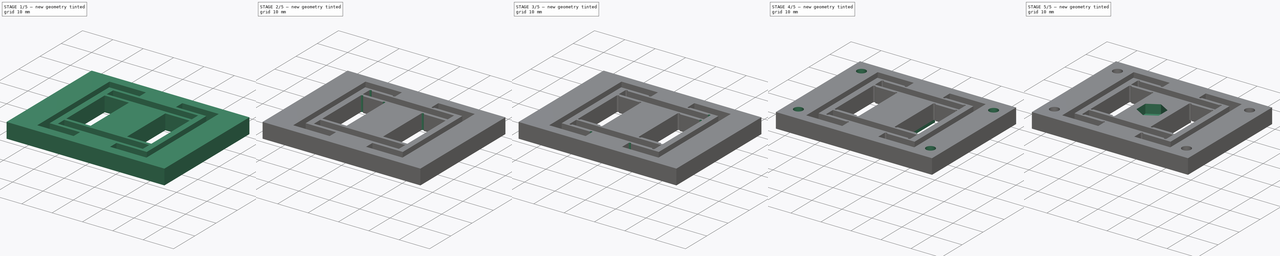
[diagram: build sequence overview — one tinted view per stage of 5, left to right]
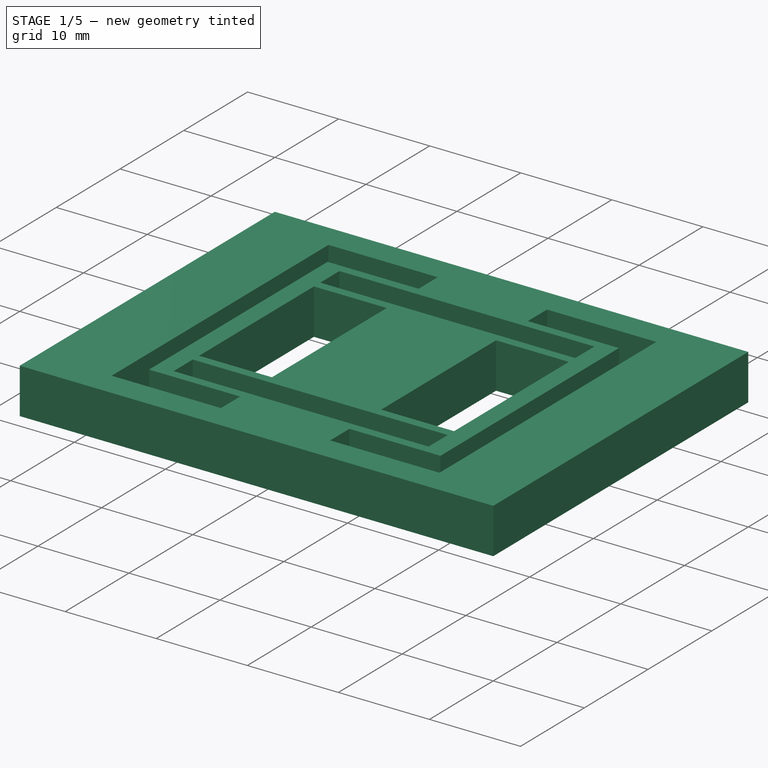
[diagram: stage 1 of 5 — iso view after this stage's code; geometry added in this stage tinted green]
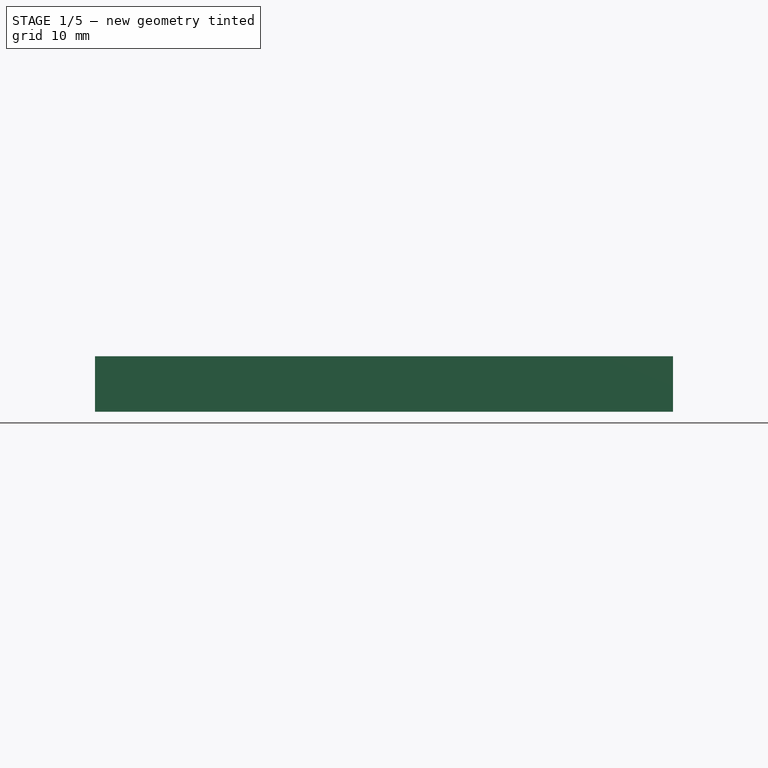
[diagram: stage 1 of 5 — front view after this stage's code; geometry added in this stage tinted green]
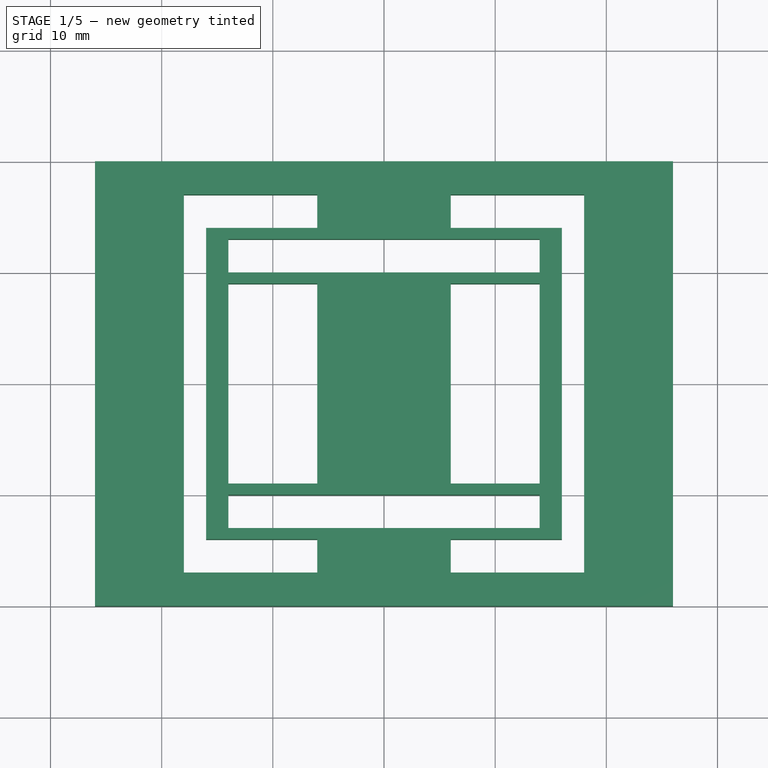
[diagram: stage 1 of 5 — top view after this stage's code; geometry added in this stage tinted green]
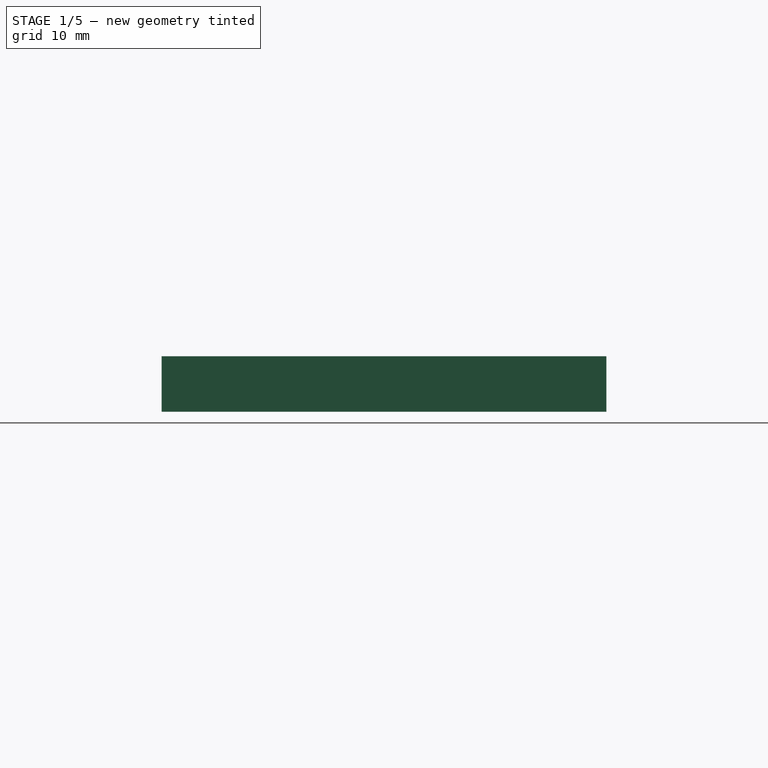
[diagram: stage 1 of 5 — right view after this stage's code; geometry added in this stage tinted green]
FCSTD DOCUMENT  (FreeCAD 0.18R16131 (Git))
Label: pen_holder_flexure
License: All rights reserved
LicenseURL: http://en.wikipedia.org/wiki/All_rights_reserved
objects: Sketcher::SketchObject×11, PartDesign::Pocket×8, PartDesign::Mirrored×5, PartDesign::Pad×3, PartDesign::Plane×1, PartDesign::Body×1
note: 40 computed .brp shape members not serialized (recipe doc carries the construction recipe); baked Part::Feature solids carry a one-line shape summary decoded from their .brp

FEATURE [Sketcher::SketchObject] Sketch
  MapMode = 5
  Support = -> [XY_Plane]
  sketch-geometry (4):
    g0: LineSegment StartX=-26 StartY=0 StartZ=0 EndX=26 EndY=0 EndZ=0
    g1: LineSegment StartX=26 StartY=0 StartZ=0 EndX=26 EndY=40 EndZ=0
    g2: LineSegment StartX=26 StartY=40 StartZ=0 EndX=-26 EndY=40 EndZ=0
    g3: LineSegment StartX=-26 StartY=40 StartZ=0 EndX=-26 EndY=0 EndZ=0
  constraints (11):
    c: Coincident(g0,g1)
    c: Coincident(g1,g2)
    c: Coincident(g2,g3)
    c: Coincident(g3,g0)
    c: Horizontal(g2)
    c: Vertical(g1)
    c: Vertical(g3)
    c: Symmetric(g0,g0,g-2)
    c: DistanceX(g2,g1) = 52
    c: DistanceY(g0,g1) = 40
    c: Horizontal(g0,g-1)
FEATURE [PartDesign::Pad] Pad
  Length = 5
  Length2 = 100
  Profile = -> Sketch
  Type = 0
FEATURE [Sketcher::SketchObject] Sketch001  label="flexure_cut_sketch"
  ExternalGeometry = -> [Pad]
  MapMode = 5
  Placement = pos=(0,0,5) rot=(0,0,1;0rad)
  Support = -> [Pad]
  sketch-geometry (21):
    g0: LineSegment StartX=-18 StartY=37 StartZ=0 EndX=-18 EndY=3 EndZ=0
    g1: LineSegment StartX=-18 StartY=3 StartZ=0 EndX=-6 EndY=3 EndZ=0
    g2: LineSegment StartX=-6 StartY=3 StartZ=0 EndX=-6 EndY=6 EndZ=0
    g3: LineSegment StartX=-6 StartY=6 StartZ=0 EndX=-16 EndY=6 EndZ=0
    g4: LineSegment StartX=-16 StartY=6 StartZ=0 EndX=-16 EndY=34 EndZ=0
    g5: LineSegment StartX=-16 StartY=34 StartZ=0 EndX=-6 EndY=34 EndZ=0
    g6: LineSegment StartX=-6 StartY=34 StartZ=0 EndX=-6 EndY=37 EndZ=0
    g7: LineSegment StartX=-6 StartY=37 StartZ=0 EndX=-18 EndY=37 EndZ=0
    g8: LineSegment StartX=0 StartY=33 StartZ=0 EndX=-14 EndY=33 EndZ=0
    g9: LineSegment StartX=-14 StartY=33 StartZ=0 EndX=-14 EndY=30 EndZ=0
    g10: LineSegment StartX=-14 StartY=30 StartZ=0 EndX=0 EndY=30 EndZ=0
    g11: LineSegment StartX=0 StartY=30 StartZ=0 EndX=0 EndY=33 EndZ=0
    g12: LineSegment StartX=0 StartY=10 StartZ=0 EndX=-14 EndY=10 EndZ=0
    g13: LineSegment StartX=-14 StartY=10 StartZ=0 EndX=-14 EndY=7 EndZ=0
    g14: LineSegment StartX=-14 StartY=7 StartZ=0 EndX=0 EndY=7 EndZ=0
    g15: LineSegment StartX=0 StartY=7 StartZ=0 EndX=0 EndY=10 EndZ=0
    g16: LineSegment [constr] StartX=-20.7694 StartY=20 StartZ=0 EndX=13.0053 EndY=20 EndZ=0
    g17: LineSegment StartX=-14 StartY=29 StartZ=0 EndX=-6 EndY=29 EndZ=0
    g18: LineSegment StartX=-6 StartY=29 StartZ=0 EndX=-6 EndY=11 EndZ=0
    g19: LineSegment StartX=-6 StartY=11 StartZ=0 EndX=-14 EndY=11 EndZ=0
    g20: LineSegment StartX=-14 StartY=11 StartZ=0 EndX=-14 EndY=29 EndZ=0
  constraints (59):
    c: Coincident(g0,g1)
    c: Coincident(g1,g2)
    c: Coincident(g2,g3)
    c: Coincident(g3,g4)
    c: Coincident(g4,g5)
    c: Coincident(g5,g6)
    c: Coincident(g6,g7)
    c: Coincident(g0,g7)
    c: Horizontal(g7)
    c: Horizontal(g5)
    c: Horizontal(g3)
    c: Horizontal(g1)
    c: Vertical(g6)
    c: Vertical(g0)
    c: Vertical(g4)
    c: Vertical(g2)
    c: Equal(g2,g6)
    c: Equal(g1,g7)
    c: Coincident(g8,g9)
    c: Coincident(g9,g10)
    c: Coincident(g10,g11)
    c: Coincident(g11,g8)
    c: Horizontal(g8)
    c: Horizontal(g10)
    c: Vertical(g11)
    c: Vertical(g9)
    c: PointOnObject(g10,g-2)
    c: Coincident(g12,g13)
    c: Coincident(g13,g14)
    c: Coincident(g14,g15)
    c: Coincident(g15,g12)
    c: Horizontal(g12)
    c: Horizontal(g14)
    c: Vertical(g13)
    c: Vertical(g15)
    c: DistanceY(g-1,g16) = 20
    c: Equal(g15,g11)
    c: Equal(g12,g10)
    c: Symmetric(g12,g10,g16)
    c: Symmetric(g5,g2,g16)
    c: DistanceY(g8,g5) = 1
    c: DistanceX(g4,g8) = 2
    c: DistanceX(g0,g4) = 2
    c: DistanceY(g5,g6) = 3
    c: DistanceY(g6,g-3) = 3
    c: Coincident(g17,g18)
    c: Coincident(g18,g19)
    c: Coincident(g19,g20)
    c: Coincident(g20,g17)
    c: Horizontal(g17)
    c: Horizontal(g19)
    c: Vertical(g20)
    c: Symmetric(g18,g17,g16)
    c: Vertical(g17,g9)
    c: Vertical(g17,g5)
    c: DistanceX(g17,g-1) = 6
    c: DistanceY(g17,g10) = 1
    c: DistanceY(g10,g8) = 3
    c: DistanceX(g-3,g0) = 8
FEATURE [PartDesign::Pocket] Pocket  label="flexure_cut"
  BaseFeature = -> Pad
  Length = 5
  Length2 = 100
  Profile = -> Sketch001
  Type = 0
FEATURE [PartDesign::Mirrored] Mirrored  label="flexure_mirror"
  BaseFeature = -> Pocket
  MirrorPlane = -> Sketch001 [V_Axis]
  Originals = -> [Pocket]
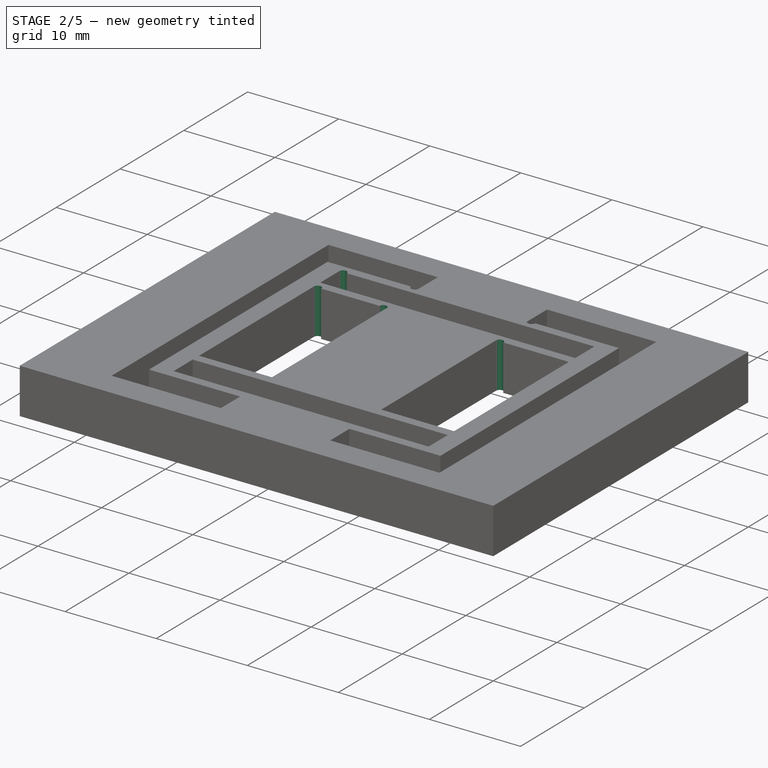
[diagram: stage 2 of 5 — iso view after this stage's code; geometry added in this stage tinted green]
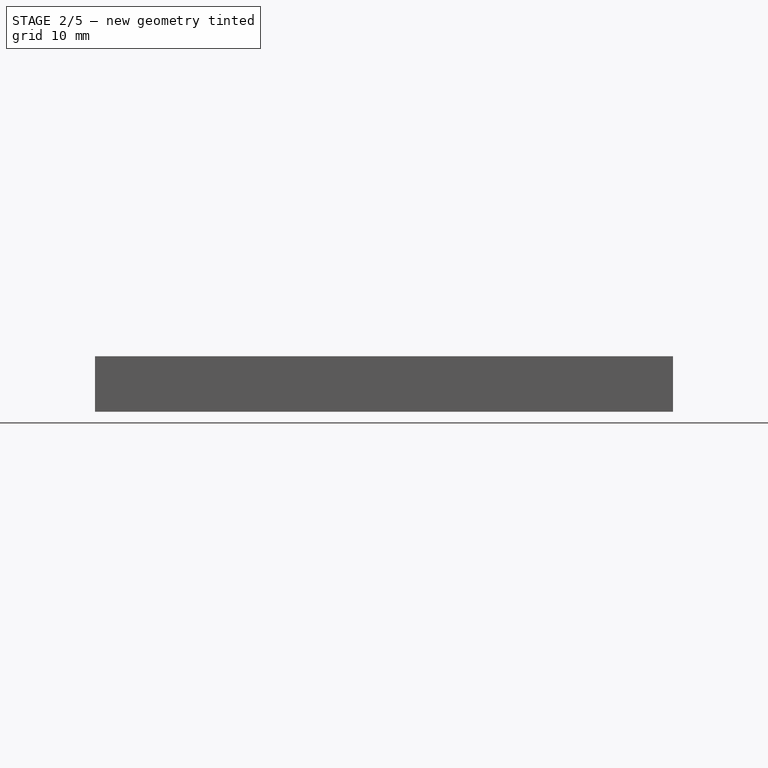
[diagram: stage 2 of 5 — front view after this stage's code; geometry added in this stage tinted green]
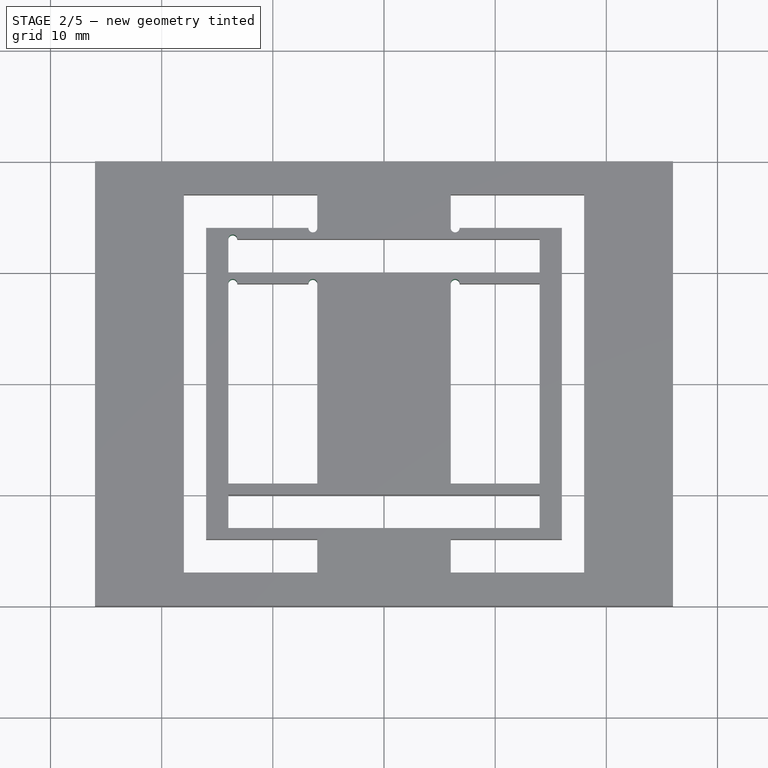
[diagram: stage 2 of 5 — top view after this stage's code; geometry added in this stage tinted green]
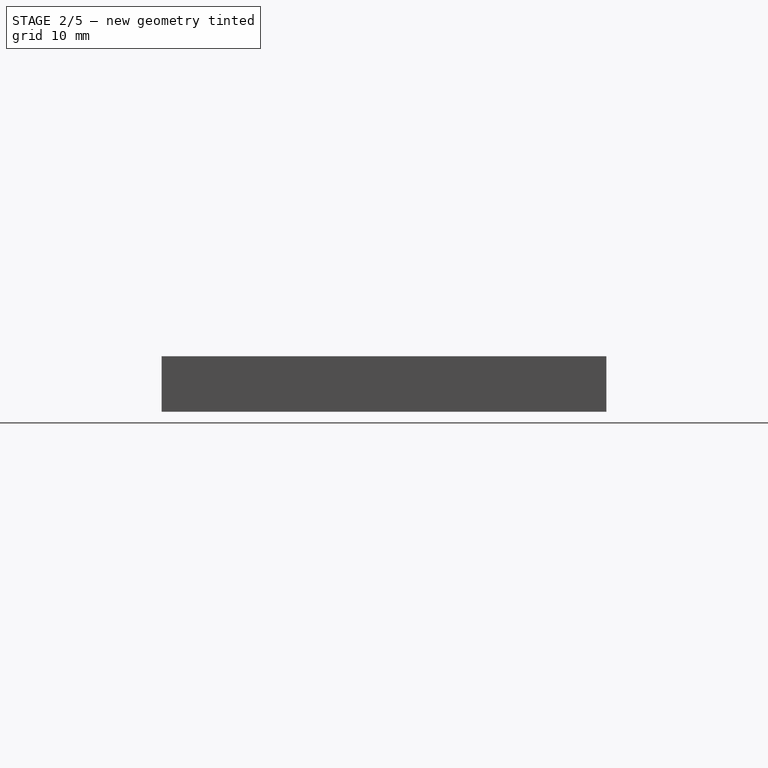
[diagram: stage 2 of 5 — right view after this stage's code; geometry added in this stage tinted green]
FEATURE [Sketcher::SketchObject] Sketch002  label="inner_hinge_cut_sketch"
  ExternalGeometry = -> [Mirrored]
  MapMode = 5
  Placement = pos=(0,0,5) rot=(0,0,1;0rad)
  Support = -> [Mirrored]
  sketch-geometry (2):
    g0: Circle CenterX=-6.4 CenterY=34 CenterZ=0 NormalX=0 NormalY=0 NormalZ=1 AngleXU=0 Radius=0.4
    g1: Circle CenterX=-6.4 CenterY=29 CenterZ=0 NormalX=0 NormalY=0 NormalZ=1 AngleXU=0 Radius=0.4
  constraints (6):
    c: Tangent(g0,g-3)
    c: Radius(g0) = 0.4
    c: Horizontal(g0,g-3)
    c: Horizontal(g1,g-4)
    c: Equal(g1,g0)
    c: PointOnObject(g-4,g1)
FEATURE [PartDesign::Pocket] Pocket001  label="inner_hinge_cut"
  BaseFeature = -> Mirrored
  Length = 5
  Length2 = 100
  Profile = -> Sketch002
  Type = 1
FEATURE [PartDesign::Mirrored] Mirrored001  label="inner_hinge_mirror_x"
  BaseFeature = -> Pocket001
  MirrorPlane = -> Sketch002 [V_Axis]
  Originals = -> [Pocket001]
FEATURE [PartDesign::Plane] DatumPlane  label="xz_middle"
  AttachmentOffset = pos=(0,0,-20) rot=(0,0,1;0rad)
  Length = 58.4498
  MapMode = 5
  Placement = pos=(0,20,-4.4e-15) rot=(1,0,0;1.5708rad)
  ResizeMode = 0
  Support = -> [XZ_Plane]
  Width = 26.4498
FEATURE [Sketcher::SketchObject] Sketch003  label="outer_hinge_cut"
  MapMode = 5
  Placement = pos=(0,0,5) rot=(0,0,1;0rad)
  sketch-geometry (2):
    g0: Circle CenterX=-13.6 CenterY=33 CenterZ=0 NormalX=0 NormalY=0 NormalZ=1 AngleXU=0 Radius=0.4
    g1: Circle CenterX=-13.6 CenterY=29 CenterZ=0 NormalX=0 NormalY=0 NormalZ=1 AngleXU=0 Radius=0.4
  constraints (6):
    c: Equal(g1,g0)
    c: Radius(g0) = 0.4
    c: DistanceX(g1,g-1) = 13.6
    c: Vertical(g1,g0)
    c: DistanceY(g-1,g1) = 29
    c: DistanceY(g1,g0) = 4
FEATURE [PartDesign::Pocket] Pocket002  label="outer_hinge_cut001"
  BaseFeature = -> Mirrored001
  Length = 5
  Length2 = 100
  Profile = -> Sketch003
  Type = 1
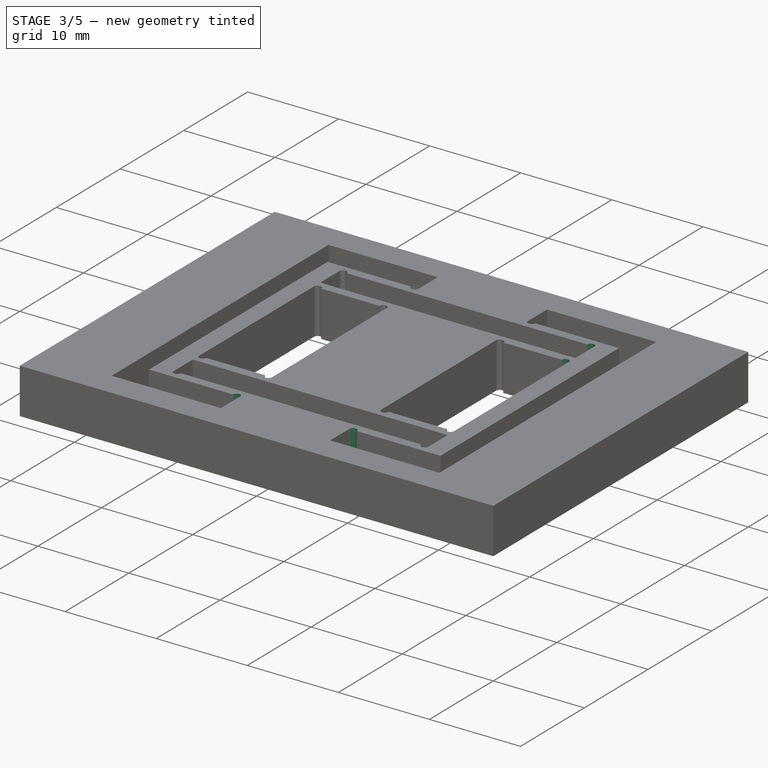
[diagram: stage 3 of 5 — iso view after this stage's code; geometry added in this stage tinted green]
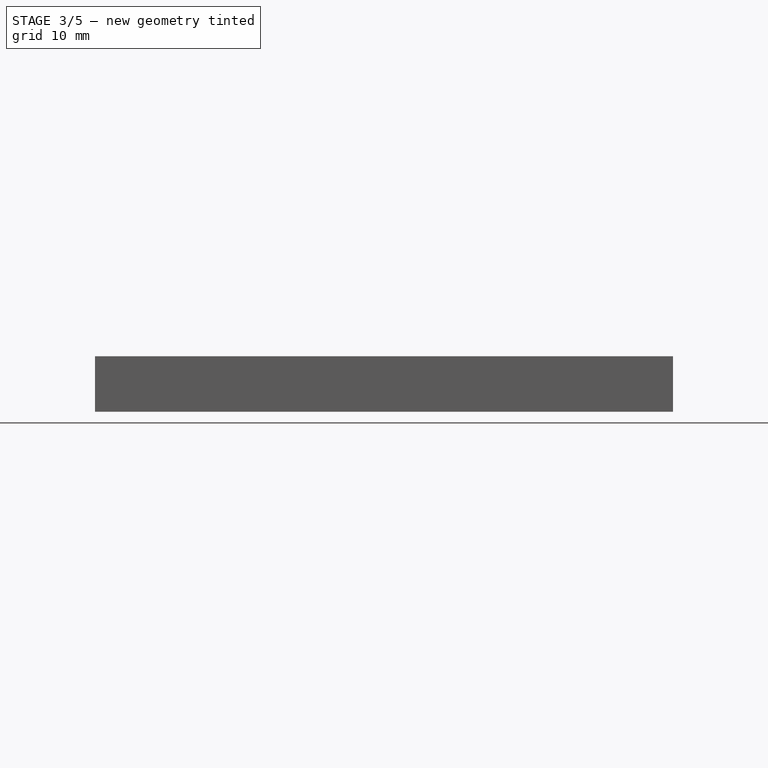
[diagram: stage 3 of 5 — front view after this stage's code; geometry added in this stage tinted green]
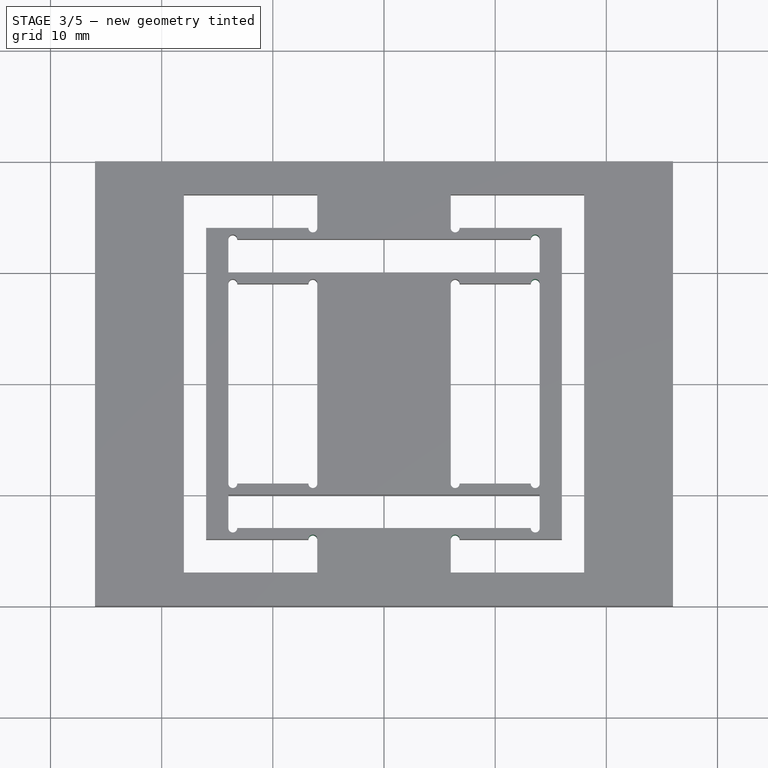
[diagram: stage 3 of 5 — top view after this stage's code; geometry added in this stage tinted green]
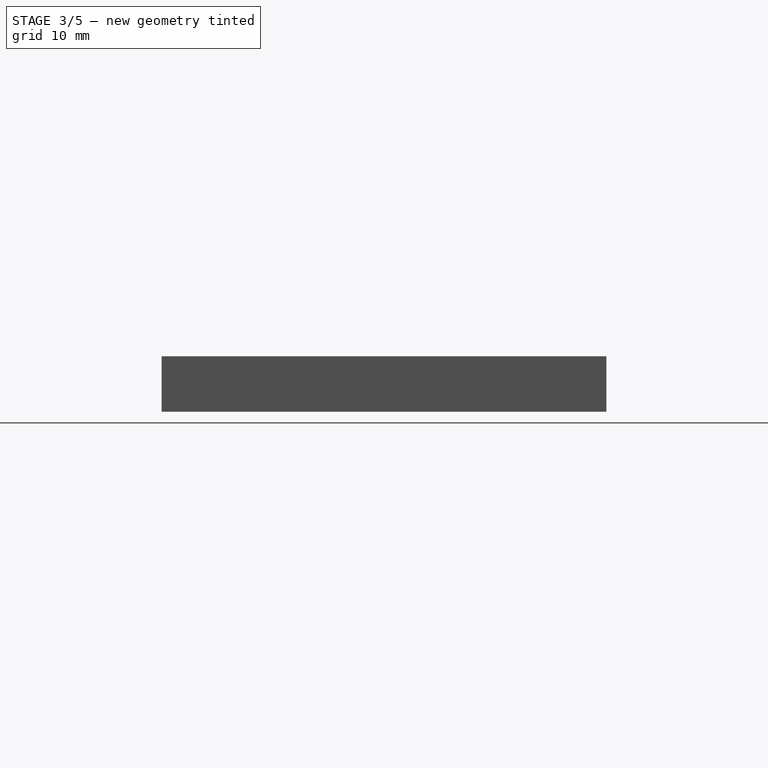
[diagram: stage 3 of 5 — right view after this stage's code; geometry added in this stage tinted green]
FEATURE [PartDesign::Mirrored] Mirrored002  label="outer_hinge_mirror_x"
  BaseFeature = -> Pocket002
  MirrorPlane = -> Sketch003 [V_Axis]
  Originals = -> [Pocket002]
FEATURE [PartDesign::Mirrored] Mirrored003  label="inner_hinge_mirror_y"
  BaseFeature = -> Mirrored002
  MirrorPlane = -> DatumPlane
  Originals = -> [Pocket001]
FEATURE [PartDesign::Mirrored] Mirrored004  label="outer_hinge_mirror_y"
  BaseFeature = -> Mirrored003
  MirrorPlane = -> DatumPlane
  Originals = -> [Pocket002]
FEATURE [Sketcher::SketchObject] Sketch004  label="hinge_cut_002"
  ExternalGeometry = -> [Mirrored004]
  MapMode = 5
  Placement = pos=(0,0,5) rot=(0,0,1;0rad)
  Support = -> [Mirrored004]
  sketch-geometry (4):
    g0: Circle CenterX=6.4 CenterY=6 CenterZ=0 NormalX=0 NormalY=0 NormalZ=1 AngleXU=0 Radius=0.4
    g1: Circle CenterX=13.6 CenterY=11 CenterZ=0 NormalX=0 NormalY=0 NormalZ=1 AngleXU=0 Radius=0.4
    g2: Circle CenterX=6.4 CenterY=11 CenterZ=0 NormalX=0 NormalY=0 NormalZ=1 AngleXU=0 Radius=0.4
    g3: Circle CenterX=13.6 CenterY=7 CenterZ=0 NormalX=0 NormalY=0 NormalZ=1 AngleXU=0 Radius=0.4
  constraints (11):
    c: Radius(g0) = 0.4
    c: Vertical(g3,g1)
    c: Equal(g2,g0)
    c: Equal(g0,g3)
    c: Equal(g3,g1)
    c: DistanceX(g-1,g0) = 6.4
    c: Vertical(g0,g2)
    c: DistanceY(g-1,g0) = 6
    c: DistanceX(g-1,g3) = 13.6
    c: DistanceY(g3,g1) = 4
    c: DistanceY(g-1,g3) = 7
FEATURE [PartDesign::Pocket] Pocket003  label="hinge_cut_003"
  BaseFeature = -> Mirrored004
  Length = 5
  Length2 = 100
  Profile = -> Sketch004
  Type = 1
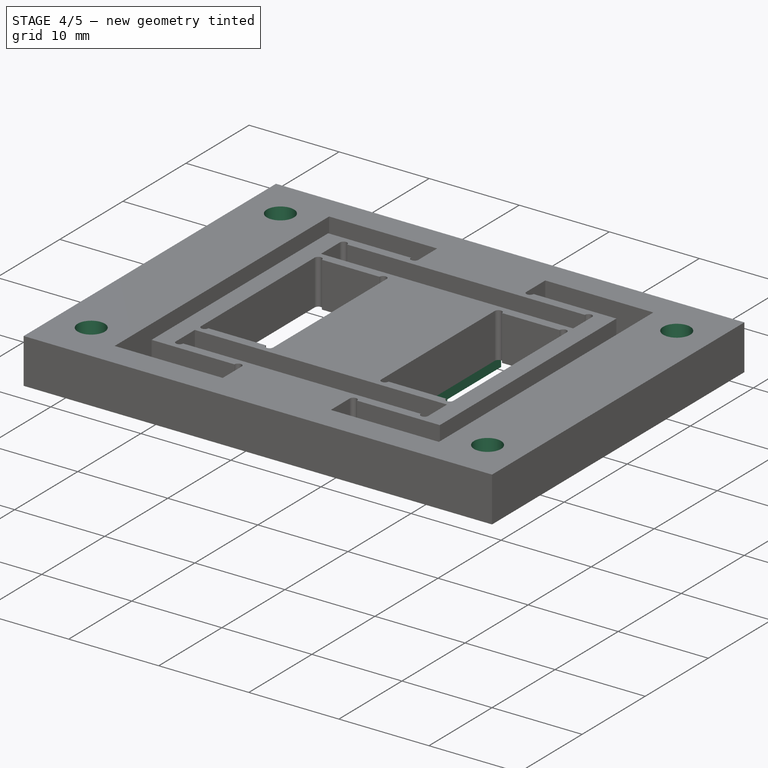
[diagram: stage 4 of 5 — iso view after this stage's code; geometry added in this stage tinted green]
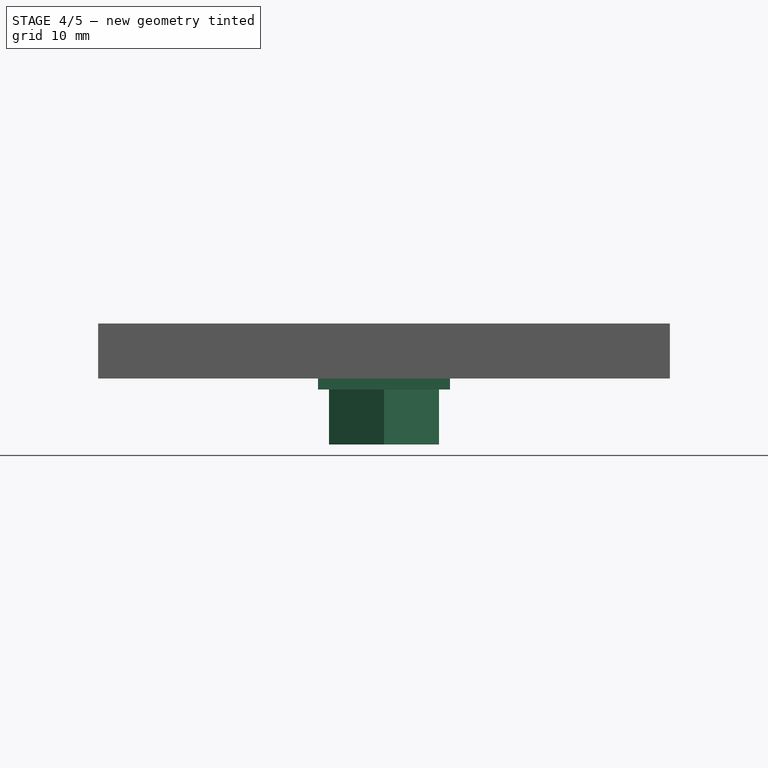
[diagram: stage 4 of 5 — front view after this stage's code; geometry added in this stage tinted green]
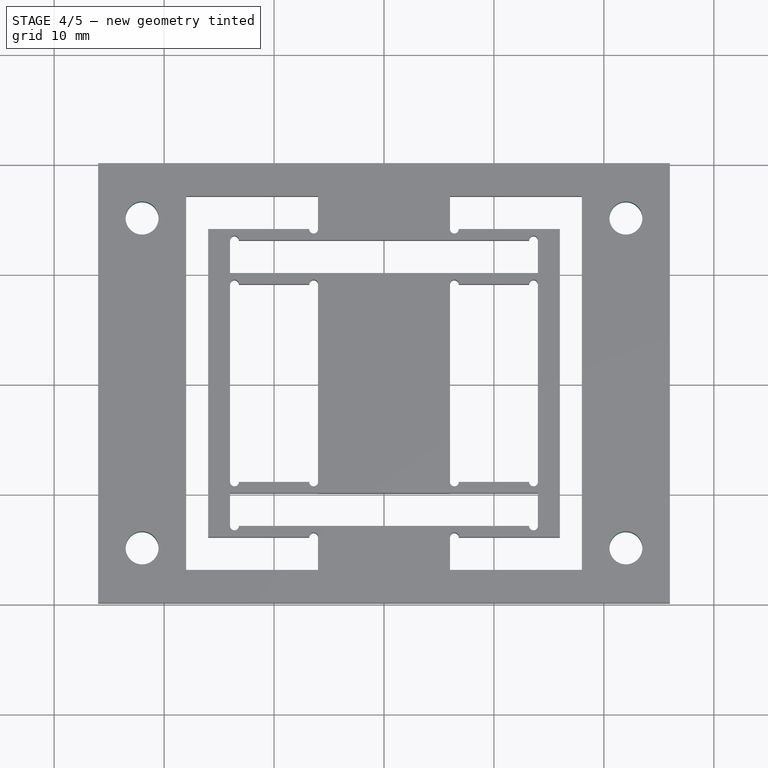
[diagram: stage 4 of 5 — top view after this stage's code; geometry added in this stage tinted green]
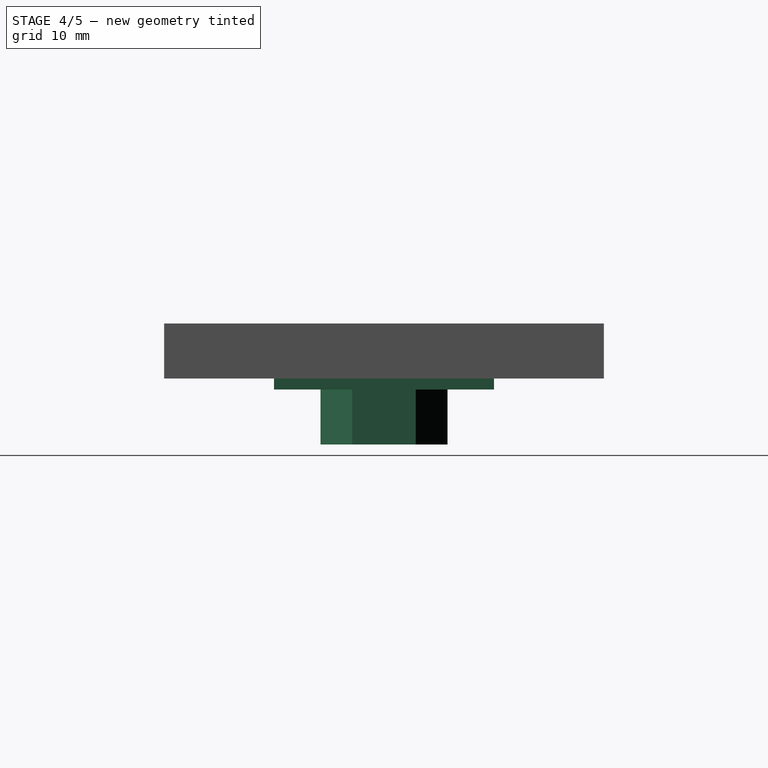
[diagram: stage 4 of 5 — right view after this stage's code; geometry added in this stage tinted green]
FEATURE [Sketcher::SketchObject] Sketch006
  MapMode = 5
  Placement = pos=(0,0,0) rot=(1,0,0;3.14159rad)
  sketch-geometry (4):
    g0: LineSegment StartX=-6 StartY=-10 StartZ=0 EndX=6 EndY=-10 EndZ=0
    g1: LineSegment StartX=6 StartY=-10 StartZ=0 EndX=6 EndY=-30 EndZ=0
    g2: LineSegment StartX=6 StartY=-30 StartZ=0 EndX=-6 EndY=-30 EndZ=0
    g3: LineSegment StartX=-6 StartY=-30 StartZ=0 EndX=-6 EndY=-10 EndZ=0
  constraints (12):
    c: Coincident(g0,g1)
    c: Coincident(g1,g2)
    c: Coincident(g2,g3)
    c: Coincident(g3,g0)
    c: Horizontal(g0)
    c: Horizontal(g2)
    c: Vertical(g1)
    c: Vertical(g3)
    c: DistanceX(g2,g1) = 12
    c: DistanceY(g1,g0) = 20
    c: DistanceX(g2,g-1) = 6
    c: DistanceY(g0,g-1) = 10
FEATURE [PartDesign::Pad] Pad001
  BaseFeature = -> Pocket003
  Length = 1
  Length2 = 100
  Profile = -> Sketch006
  Type = 0
FEATURE [Sketcher::SketchObject] Sketch007
  MapMode = 5
  Placement = pos=(0,0,-1) rot=(1,0,0;3.14159rad)
  Support = -> [Pad001]
  sketch-geometry (7):
    g0: LineSegment StartX=-5 StartY=-22.8868 StartZ=0 EndX=0 EndY=-25.7735 EndZ=0
    g1: LineSegment StartX=0 StartY=-25.7735 StartZ=0 EndX=5 EndY=-22.8868 EndZ=0
    g2: LineSegment StartX=5 StartY=-22.8868 StartZ=0 EndX=5 EndY=-17.1132 EndZ=0
    g3: LineSegment StartX=5 StartY=-17.1132 StartZ=0 EndX=0 EndY=-14.2265 EndZ=0
    g4: LineSegment StartX=-4e-16 StartY=-14.2265 StartZ=0 EndX=-5 EndY=-17.1132 EndZ=0
    g5: LineSegment StartX=-5 StartY=-17.1132 StartZ=0 EndX=-5 EndY=-22.8868 EndZ=0
    g6: Circle [constr] CenterX=0 CenterY=-20 CenterZ=0 NormalX=0 NormalY=0 NormalZ=1 AngleXU=0 Radius=5.7735
  constraints (17):
    c: Coincident(g0,g1)
    c: Coincident(g1,g2)
    c: Coincident(g2,g3)
    c: Coincident(g3,g4)
    c: Coincident(g4,g5)
    c: Coincident(g5,g0)
    c: Equal(g0, g1-g5) x5
    c: PointOnObject(g0,g6)
    c: PointOnObject(g1,g6)
    c: PointOnObject(g2,g6)
    c: PointOnObject(g3,g6)
    c: PointOnObject(g4,g6)
    c: PointOnObject(g5,g6)
    c: Vertical(g5)
    c: DistanceX(g0,g1) = 10
    c: Vertical(g6,g-1)
    c: DistanceY(g6,g-1) = 20
FEATURE [PartDesign::Pad] Pad002
  BaseFeature = -> Pad001
  Length = 5
  Length2 = 100
  Profile = -> Sketch007
  Type = 0
FEATURE [Sketcher::SketchObject] Sketch008
  MapMode = 5
  Placement = pos=(0,0,0) rot=(1,0,0;3.14159rad)
  Support = -> [Pad002]
  sketch-geometry (4):
    g0: Circle CenterX=-22 CenterY=-5 CenterZ=0 NormalX=0 NormalY=0 NormalZ=1 AngleXU=0 Radius=1.5
    g1: Circle CenterX=-22 CenterY=-35 CenterZ=0 NormalX=0 NormalY=0 NormalZ=1 AngleXU=0 Radius=1.5
    g2: Circle CenterX=22 CenterY=-5 CenterZ=0 NormalX=0 NormalY=0 NormalZ=1 AngleXU=0 Radius=1.5
    g3: Circle CenterX=22 CenterY=-35 CenterZ=0 NormalX=0 NormalY=0 NormalZ=1 AngleXU=0 Radius=1.5
  constraints (10):
    c: Equal(g0,g1)
    c: Equal(g1,g3)
    c: Equal(g3,g2)
    c: Radius(g0) = 1.5
    c: Symmetric(g0,g2,g-2)
    c: Symmetric(g1,g3,g-2)
    c: Vertical(g0,g1)
    c: DistanceX(g0,g-1) = 22
    c: DistanceY(g2,g-1) = 5
    c: DistanceY(g1,g0) = 30
FEATURE [PartDesign::Pocket] Pocket004  label="m4_screw_holes"
  BaseFeature = -> Pad002
  Length = 5
  Length2 = 100
  Profile = -> Sketch008
  Type = 1
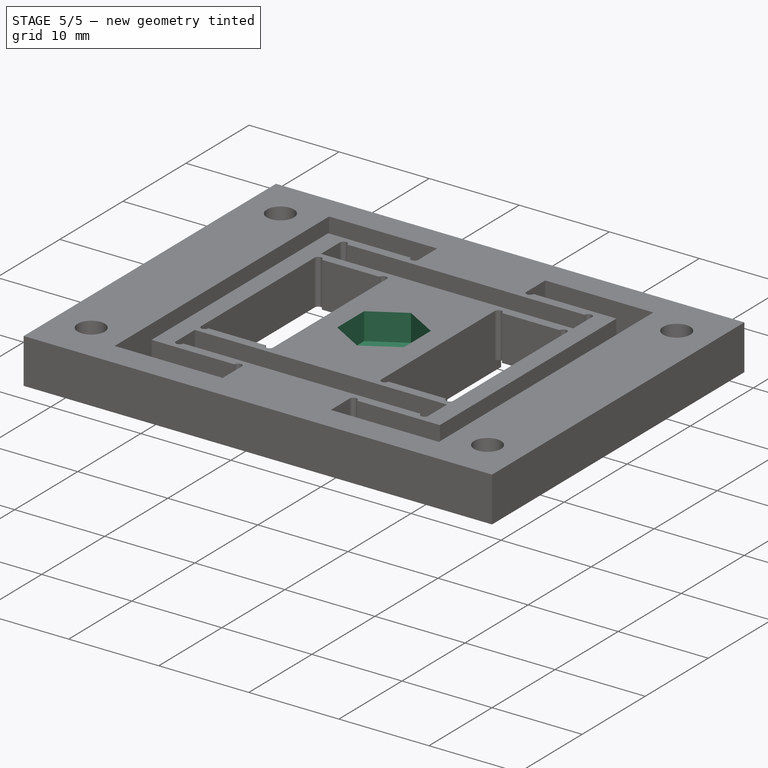
[diagram: stage 5 of 5 — iso view after this stage's code; geometry added in this stage tinted green]
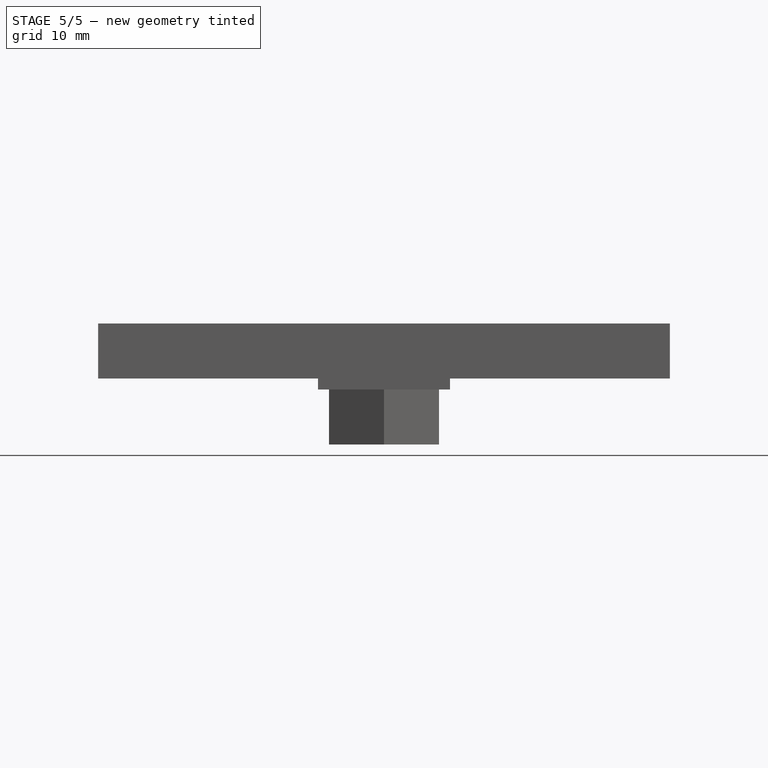
[diagram: stage 5 of 5 — front view after this stage's code; geometry added in this stage tinted green]
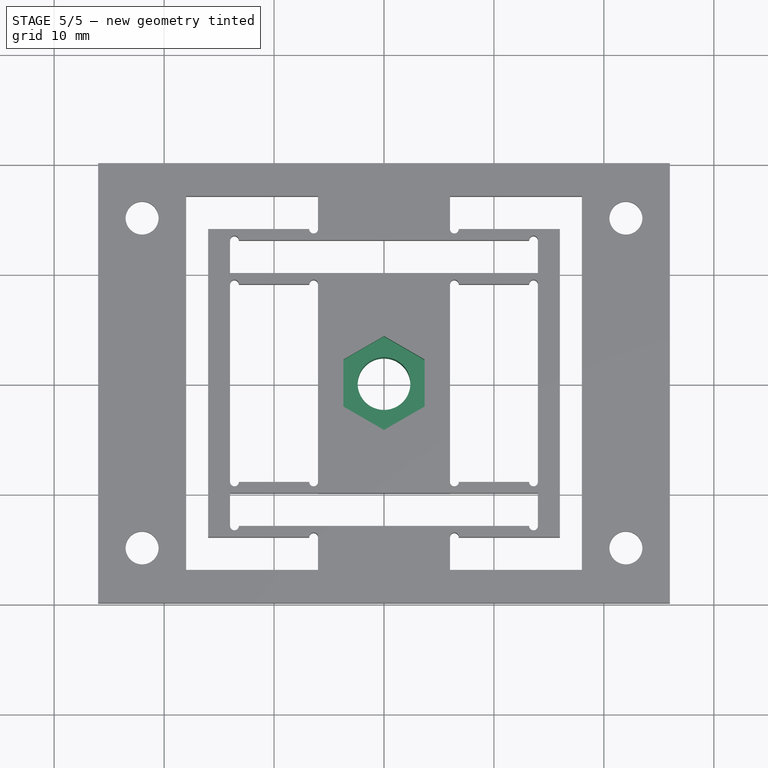
[diagram: stage 5 of 5 — top view after this stage's code; geometry added in this stage tinted green]
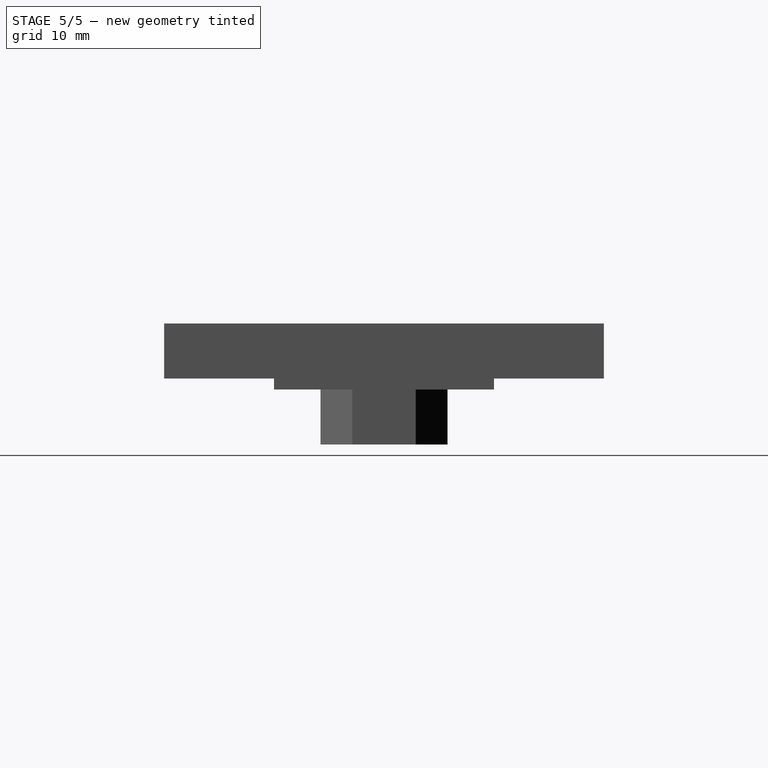
[diagram: stage 5 of 5 — right view after this stage's code; geometry added in this stage tinted green]
FEATURE [Sketcher::SketchObject] Sketch009
  ExternalGeometry = -> [Pocket004]
  MapMode = 5
  Placement = pos=(0,0,0) rot=(1,0,0;3.14159rad)
  Support = -> [Pocket004]
  sketch-geometry (28):
    g0: LineSegment StartX=-22 StartY=-38.4641 StartZ=0 EndX=-19 EndY=-36.7321 EndZ=0
    g1: LineSegment StartX=-19 StartY=-36.7321 StartZ=0 EndX=-19 EndY=-33.2679 EndZ=0
    g2: LineSegment StartX=-19 StartY=-33.2679 StartZ=0 EndX=-22 EndY=-31.5359 EndZ=0
    g3: LineSegment StartX=-22 StartY=-31.5359 StartZ=0 EndX=-25 EndY=-33.2679 EndZ=0
    g4: LineSegment StartX=-25 StartY=-33.2679 StartZ=0 EndX=-25 EndY=-36.7321 EndZ=0
    g5: LineSegment StartX=-25 StartY=-36.7321 StartZ=0 EndX=-22 EndY=-38.4641 EndZ=0
    g6: Circle [constr] CenterX=-22 CenterY=-35 CenterZ=0 NormalX=0 NormalY=0 NormalZ=1 AngleXU=0 Radius=3.4641
    g7: LineSegment StartX=-19 StartY=-3.26795 StartZ=0 EndX=-22 EndY=-1.5359 EndZ=0
    g8: LineSegment StartX=-22 StartY=-1.5359 StartZ=0 EndX=-25 EndY=-3.26795 EndZ=0
    g9: LineSegment StartX=-25 StartY=-3.26795 StartZ=0 EndX=-25 EndY=-6.73205 EndZ=0
    g10: LineSegment StartX=-25 StartY=-6.73205 StartZ=0 EndX=-22 EndY=-8.4641 EndZ=0
    g11: LineSegment StartX=-22 StartY=-8.4641 StartZ=0 EndX=-19 EndY=-6.73205 EndZ=0
    g12: LineSegment StartX=-19 StartY=-6.73205 StartZ=0 EndX=-19 EndY=-3.26795 EndZ=0
    g13: Circle [constr] CenterX=-22 CenterY=-5 CenterZ=0 NormalX=0 NormalY=0 NormalZ=1 AngleXU=0 Radius=3.4641
    g14: LineSegment StartX=25 StartY=-33.2679 StartZ=0 EndX=22 EndY=-31.5359 EndZ=0
    g15: LineSegment StartX=22 StartY=-31.5359 StartZ=0 EndX=19 EndY=-33.2679 EndZ=0
    g16: LineSegment StartX=19 StartY=-33.2679 StartZ=0 EndX=19 EndY=-36.7321 EndZ=0
    g17: LineSegment StartX=19 StartY=-36.7321 StartZ=0 EndX=22 EndY=-38.4641 EndZ=0
    g18: LineSegment StartX=22 StartY=-38.4641 StartZ=0 EndX=25 EndY=-36.7321 EndZ=0
    g19: LineSegment StartX=25 StartY=-36.7321 StartZ=0 EndX=25 EndY=-33.2679 EndZ=0
    g20: Circle [constr] CenterX=22 CenterY=-35 CenterZ=0 NormalX=0 NormalY=0 NormalZ=1 AngleXU=0 Radius=3.4641
    g21: LineSegment StartX=22 StartY=-8.4641 StartZ=0 EndX=25 EndY=-6.73205 EndZ=0
    g22: LineSegment StartX=25 StartY=-6.73205 StartZ=0 EndX=25 EndY=-3.26795 EndZ=0
    g23: LineSegment StartX=25 StartY=-3.26795 StartZ=0 EndX=22 EndY=-1.5359 EndZ=0
    g24: LineSegment StartX=22 StartY=-1.5359 StartZ=0 EndX=19 EndY=-3.26795 EndZ=0
    g25: LineSegment StartX=19 StartY=-3.26795 StartZ=0 EndX=19 EndY=-6.73205 EndZ=0
    g26: LineSegment StartX=19 StartY=-6.73205 StartZ=0 EndX=22 EndY=-8.4641 EndZ=0
    g27: Circle [constr] CenterX=22 CenterY=-5 CenterZ=0 NormalX=0 NormalY=0 NormalZ=1 AngleXU=0 Radius=3.4641
  constraints (62):
    c: Coincident(g0,g1)
    c: Coincident(g1,g2)
    c: Coincident(g2,g3)
    c: Coincident(g3,g4)
    c: Coincident(g4,g5)
    c: Coincident(g5,g0)
    c: Equal(g0, g1-g5) x5
    c: PointOnObject(g0,g6)
    c: PointOnObject(g1,g6)
    c: PointOnObject(g2,g6)
    c: PointOnObject(g3,g6)
    c: PointOnObject(g4,g6)
    c: PointOnObject(g5,g6)
    c: Coincident(g7,g8)
    c: Coincident(g8,g9)
    c: Coincident(g9,g10)
    c: Coincident(g10,g11)
    c: Coincident(g11,g12)
    c: Coincident(g12,g7)
    c: Equal(g7, g8-g12) x5
    c: PointOnObject(g7,g13)
    c: PointOnObject(g8,g13)
    c: PointOnObject(g9,g13)
    c: PointOnObject(g10,g13)
    c: PointOnObject(g11,g13)
    c: PointOnObject(g12,g13)
    c: Coincident(g14,g15)
    c: Coincident(g15,g16)
    c: Coincident(g16,g17)
    c: Coincident(g17,g18)
    c: Coincident(g18,g19)
    c: Coincident(g19,g14)
    c: Equal(g14, g15-g19) x5
    c: PointOnObject(g14,g20)
    c: PointOnObject(g15,g20)
    c: PointOnObject(g16,g20)
    c: PointOnObject(g17,g20)
    c: PointOnObject(g18,g20)
    c: PointOnObject(g19,g20)
    c: Coincident(g21,g22)
    c: Coincident(g22,g23)
    c: Coincident(g23,g24)
    c: Coincident(g24,g25)
    c: Coincident(g25,g26)
    c: Coincident(g26,g21)
    c: Equal(g21, g22-g26) x5
    c: PointOnObject(g21,g27)
    c: PointOnObject(g22,g27)
    c: PointOnObject(g23,g27)
    c: PointOnObject(g24,g27)
    c: PointOnObject(g25,g27)
    c: PointOnObject(g26,g27)
    c: Vertical(g4)
    c: DistanceX(g4,g0) = 6
    c: Vertical(g25)
    c: DistanceX(g25,g21) = 6
    c: Vertical(g9)
    c: DistanceX(g9,g11) = 6
    c: Vertical(g16)
    c: DistanceX(g16,g18) = 6
    c: Coincident(g13,g-7)
    c: Coincident(g6,g-8)
FEATURE [PartDesign::Pocket] Pocket005
  BaseFeature = -> Pocket004
  Length = 2.5
  Length2 = 100
  Profile = -> Sketch009
  Type = 0
FEATURE [Sketcher::SketchObject] Sketch010
  MapMode = 5
  Support = -> [XY_Plane]
  sketch-geometry (1):
    g0: Circle CenterX=0 CenterY=20 CenterZ=0 NormalX=0 NormalY=0 NormalZ=1 AngleXU=0 Radius=2.4
  constraints (3):
    c: Radius(g0) = 2.4
    c: Vertical(g0,g-1)
    c: DistanceY(g-1,g0) = 20
FEATURE [PartDesign::Pocket] Pocket006
  BaseFeature = -> Pocket005
  Length = 5
  Length2 = 100
  Midplane = true
  Profile = -> Sketch010
  Type = 1
FEATURE [Sketcher::SketchObject] Sketch011
  ExternalGeometry = -> [Pocket006]
  MapMode = 5
  Placement = pos=(0,0,5) rot=(0,0,1;0rad)
  Support = -> [Pocket006]
  sketch-geometry (7):
    g0: LineSegment StartX=-4.2784e-12 StartY=24.2724 StartZ=0 EndX=-3.7 EndY=22.1362 EndZ=0
    g1: LineSegment StartX=-3.7 StartY=22.1362 StartZ=0 EndX=-3.7 EndY=17.8638 EndZ=0
    g2: LineSegment StartX=-3.7 StartY=17.8638 StartZ=0 EndX=-2.9914e-12 EndY=15.7276 EndZ=0
    g3: LineSegment StartX=-2.9914e-12 StartY=15.7276 StartZ=0 EndX=3.7 EndY=17.8638 EndZ=0
    g4: LineSegment StartX=3.7 StartY=17.8638 StartZ=0 EndX=3.7 EndY=22.1362 EndZ=0
    g5: LineSegment StartX=3.7 StartY=22.1362 StartZ=0 EndX=-4.2784e-12 EndY=24.2724 EndZ=0
    g6: Circle [constr] CenterX=0 CenterY=20 CenterZ=0 NormalX=0 NormalY=0 NormalZ=1 AngleXU=0 Radius=4.27239
  constraints (16):
    c: Coincident(g0,g1)
    c: Coincident(g1,g2)
    c: Coincident(g2,g3)
    c: Coincident(g3,g4)
    c: Coincident(g4,g5)
    c: Coincident(g5,g0)
    c: Equal(g0, g1-g5) x5
    c: PointOnObject(g0,g6)
    c: PointOnObject(g1,g6)
    c: PointOnObject(g2,g6)
    c: PointOnObject(g3,g6)
    c: PointOnObject(g4,g6)
    c: PointOnObject(g5,g6)
    c: Vertical(g1)
    c: DistanceX(g1,g3) = 7.4
    c: Coincident(g6,g-3)
FEATURE [PartDesign::Pocket] Pocket007
  BaseFeature = -> Pocket006
  Length = 3
  Length2 = 100
  Profile = -> Sketch011
  Type = 0
FEATURE [PartDesign::Body] Body
  Group = -> [Sketch,Pad,Sketch001,Pocket,Mirrored,Sketch002,Pocket001,Mirrored001,DatumPlane,Sketch003,Pocket002,Mirrored002,Mirrored003,Mirrored004,Sketch004,Pocket003,Sketch006,Pad001,Sketch007,Pad002,Sketch008,Pocket004,Sketch009,Pocket005,Sketch010,Pocket006,Sketch011,Pocket007]
  Origin = -> Origin
  Tip = -> Pocket007
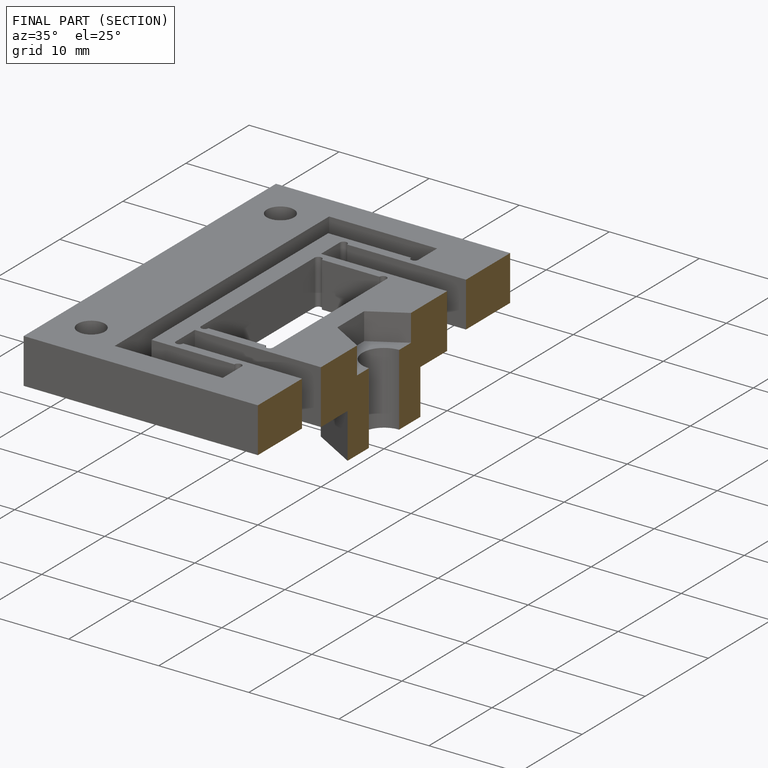
[diagram: finished part — half-section view (interior)]
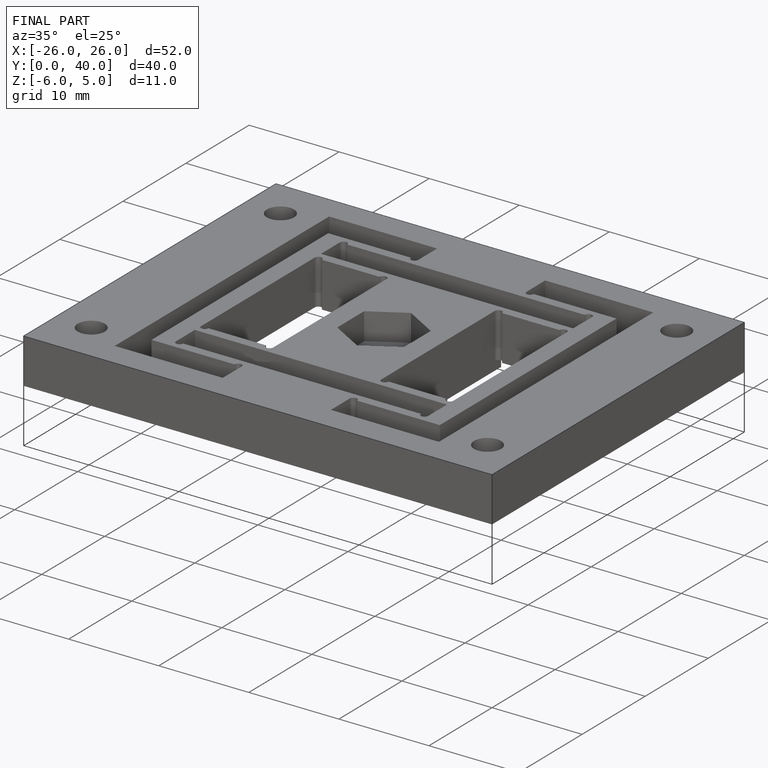
[diagram: finished part — iso view with bounding-box wireframe]
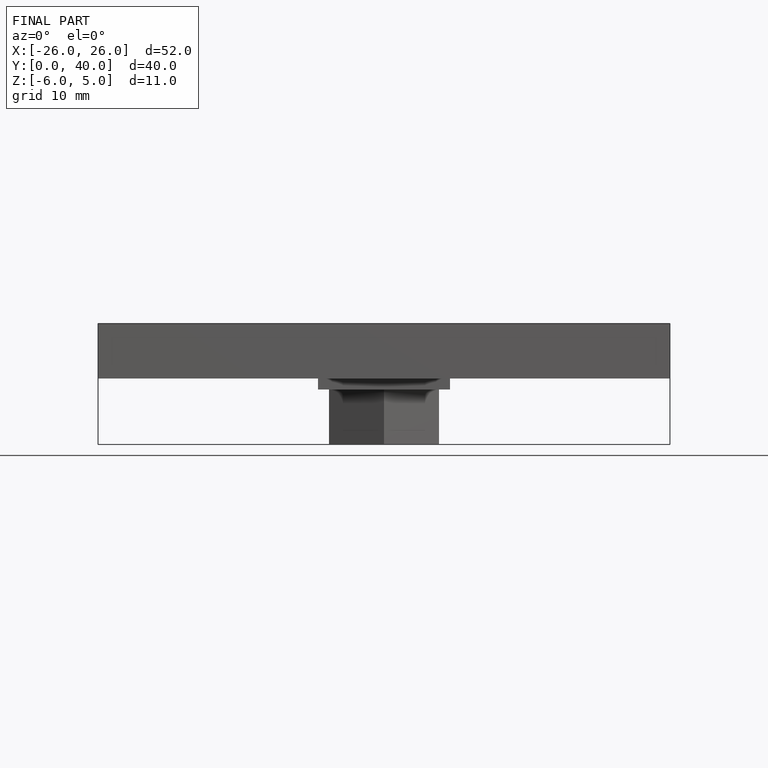
[diagram: finished part — front view with bounding-box wireframe]
